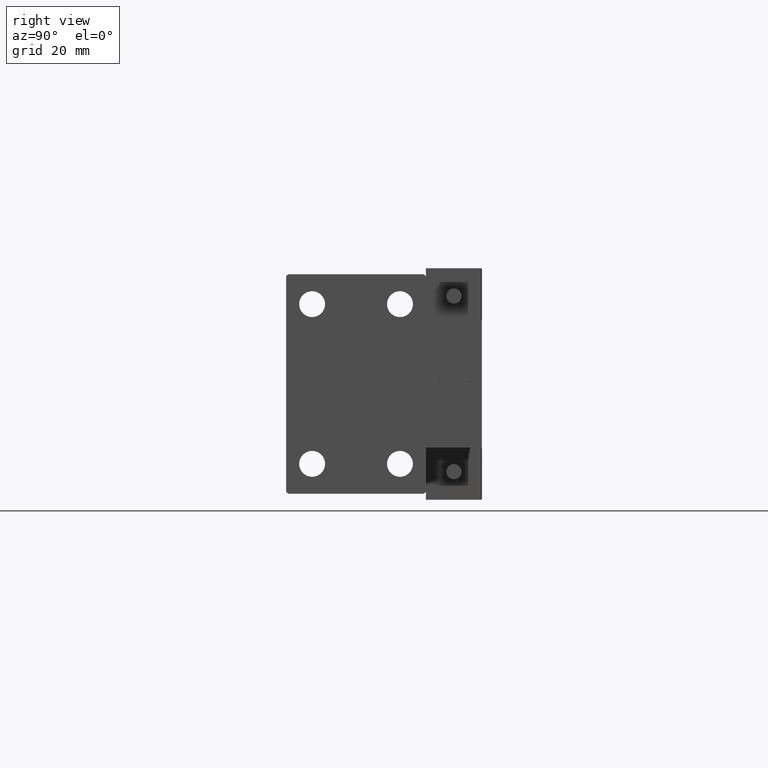
[diagram: clean part render]
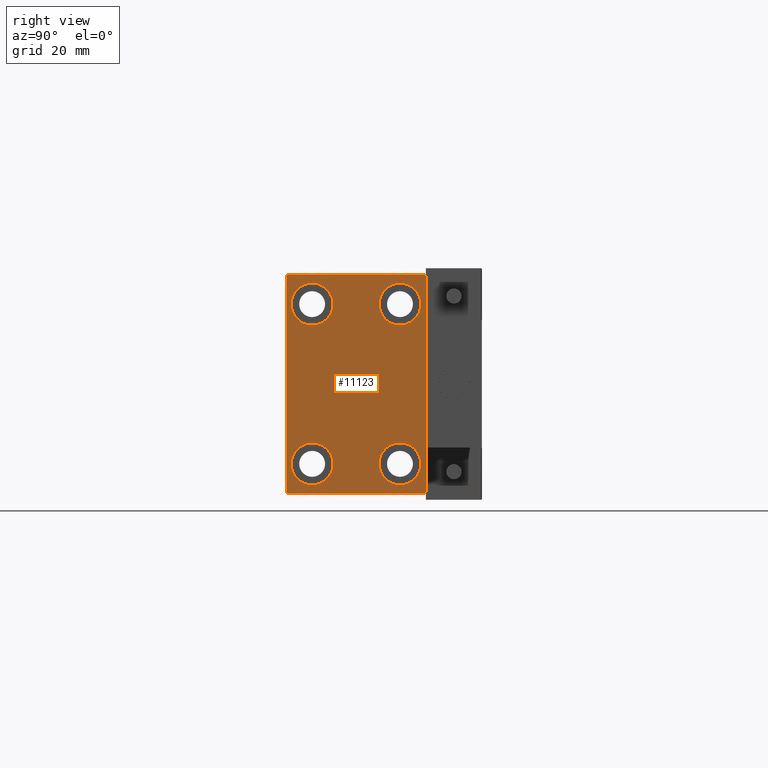
[diagram: same view with one face highlighted and labeled with its STEP entity id]
A machine part, right view. The second image highlights one B-rep face of the part: STEP entity #11123.
In plain terms, the highlighted planar face has unit normal (1, 0, 0).
Its self-contained STEP definition (entity closure, byte-faithful):
#1712 = VECTOR ( 'NONE', #11674, 1000.000000000000000 ) ;
#3314 = EDGE_LOOP ( 'NONE', ( #40503, #49471 ) ) ;
#4213 = CARTESIAN_POINT ( 'NONE',  ( 96.00000000000000000, 11.00000000000000355, -25.25000000000000000 ) ) ;
#4251 = CARTESIAN_POINT ( 'NONE',  ( 96.00000000000000000, 17.50000000000000711, -26.99999999999998934 ) ) ;
#4534 = EDGE_LOOP ( 'NONE', ( #36946, #25582 ) ) ;
#5005 = AXIS2_PLACEMENT_3D ( 'NONE', #47364, #9330, #32392 ) ;
#5074 = VECTOR ( 'NONE', #36398, 1000.000000000000114 ) ;
#5826 = CIRCLE ( 'NONE', #15543, 5.250000000000000888 ) ;
#5888 = DIRECTION ( 'NONE',  ( -1.000000000000000000, -0.000000000000000000, -0.000000000000000000 ) ) ;
#6145 = AXIS2_PLACEMENT_3D ( 'NONE', #30121, #41266, #49142 ) ;
#6338 = CIRCLE ( 'NONE', #38691, 5.250000000000000888 ) ;
#6445 = EDGE_CURVE ( 'NONE', #44806, #10533, #38529, .T. ) ;
#6670 = CARTESIAN_POINT ( 'NONE',  ( 96.00000000000000000, 17.50000000000000000, 27.50000000000000355 ) ) ;
#7096 = EDGE_CURVE ( 'NONE', #27368, #24488, #29750, .T. ) ;
#7101 = AXIS2_PLACEMENT_3D ( 'NONE', #46676, #19057, #23610 ) ;
#7784 = LINE ( 'NONE', #46830, #48483 ) ;
#9062 = ORIENTED_EDGE ( 'NONE', *, *, #27316, .T. ) ;
#9274 = CARTESIAN_POINT ( 'NONE',  ( 96.00000000000000000, -17.00000000000000000, 27.49999999999999645 ) ) ;
#9330 = DIRECTION ( 'NONE',  ( -1.000000000000000000, -0.000000000000000000, -0.000000000000000000 ) ) ;
#9632 = CIRCLE ( 'NONE', #42791, 5.250000000000000888 ) ;
#9876 = LINE ( 'NONE', #44093, #44763 ) ;
#10155 = EDGE_CURVE ( 'NONE', #42164, #32966, #47557, .T. ) ;
#10518 = CARTESIAN_POINT ( 'NONE',  ( 96.00000000000000000, -17.50000000000000000, 26.99999999999999645 ) ) ;
#10533 = VERTEX_POINT ( 'NONE', #39551 ) ;
#11123 = ADVANCED_FACE ( 'NONE', ( #34514, #37807, #45925, #22865, #38314 ), #30710, .T. ) ;
#11262 = CARTESIAN_POINT ( 'NONE',  ( 96.00000000000000000, -17.50000000000000000, -27.00000000000000355 ) ) ;
#11437 = CARTESIAN_POINT ( 'NONE',  ( 96.00000000000000000, -17.50000000000000000, 27.49999999999999645 ) ) ;
#11674 = DIRECTION ( 'NONE',  ( 0.000000000000000000, 0.000000000000000000, -1.000000000000000000 ) ) ;
#12168 = LINE ( 'NONE', #27641, #43718 ) ;
#12574 = EDGE_CURVE ( 'NONE', #10533, #44806, #9632, .T. ) ;
#12909 = CARTESIAN_POINT ( 'NONE',  ( 96.00000000000000000, -11.00000000000000355, -20.00000000000000000 ) ) ;
#12937 = ORIENTED_EDGE ( 'NONE', *, *, #12574, .T. ) ;
#13207 = DIRECTION ( 'NONE',  ( 0.000000000000000000, -0.7071067811865474617, -0.7071067811865474617 ) ) ;
#13379 = CARTESIAN_POINT ( 'NONE',  ( 96.00000000000000000, -11.00000000000000355, 25.25000000000000000 ) ) ;
#13693 = CARTESIAN_POINT ( 'NONE',  ( 96.00000000000000000, -11.00000000000000355, 14.75000000000000000 ) ) ;
#14012 = ORIENTED_EDGE ( 'NONE', *, *, #6445, .T. ) ;
#15543 = AXIS2_PLACEMENT_3D ( 'NONE', #18174, #33624, #38180 ) ;
#15739 = AXIS2_PLACEMENT_3D ( 'NONE', #38029, #18781, #22079 ) ;
#17367 = CIRCLE ( 'NONE', #15739, 5.250000000000000888 ) ;
#17511 = DIRECTION ( 'NONE',  ( 0.000000000000000000, 1.000000000000000000, 0.000000000000000000 ) ) ;
#17644 = CARTESIAN_POINT ( 'NONE',  ( 96.00000000000000000, 22.24999999999999645, -22.24999999999999645 ) ) ;
#18126 = EDGE_LOOP ( 'NONE', ( #23185, #32164, #28645, #9062, #31268, #24193, #37652, #42090 ) ) ;
#18174 = CARTESIAN_POINT ( 'NONE',  ( 96.00000000000000000, -11.00000000000000355, 20.00000000000000000 ) ) ;
#18504 = CARTESIAN_POINT ( 'NONE',  ( 96.00000000000000000, -11.00000000000000355, -25.25000000000000000 ) ) ;
#18781 = DIRECTION ( 'NONE',  ( -1.000000000000000000, -0.000000000000000000, -0.000000000000000000 ) ) ;
#19057 = DIRECTION ( 'NONE',  ( -1.000000000000000000, -0.000000000000000000, -0.000000000000000000 ) ) ;
#19116 = VECTOR ( 'NONE', #22142, 1000.000000000000000 ) ;
#20159 = VERTEX_POINT ( 'NONE', #11262 ) ;
#20332 = EDGE_LOOP ( 'NONE', ( #41956, #35189 ) ) ;
#21413 = CARTESIAN_POINT ( 'NONE',  ( 96.00000000000000000, 11.00000000000000355, -14.75000000000000000 ) ) ;
#22079 = DIRECTION ( 'NONE',  ( 0.000000000000000000, 0.000000000000000000, 1.000000000000000000 ) ) ;
#22142 = DIRECTION ( 'NONE',  ( 0.000000000000000000, -1.000000000000000000, -1.982541115402065110E-16 ) ) ;
#22865 = FACE_BOUND ( 'NONE', #20332, .T. ) ;
#22940 = VERTEX_POINT ( 'NONE', #46396 ) ;
#23185 = ORIENTED_EDGE ( 'NONE', *, *, #7096, .T. ) ;
#23610 = DIRECTION ( 'NONE',  ( 0.000000000000000000, 0.000000000000000000, 1.000000000000000000 ) ) ;
#24193 = ORIENTED_EDGE ( 'NONE', *, *, #43035, .T. ) ;
#24221 = EDGE_CURVE ( 'NONE', #32966, #42164, #41115, .T. ) ;
#24382 = LINE ( 'NONE', #44122, #46812 ) ;
#24461 = CIRCLE ( 'NONE', #5005, 5.250000000000000888 ) ;
#24488 = VERTEX_POINT ( 'NONE', #9274 ) ;
#25162 = EDGE_CURVE ( 'NONE', #24488, #38993, #24382, .T. ) ;
#25219 = VERTEX_POINT ( 'NONE', #18504 ) ;
#25582 = ORIENTED_EDGE ( 'NONE', *, *, #24221, .T. ) ;
#26294 = EDGE_CURVE ( 'NONE', #42663, #25219, #6338, .T. ) ;
#26927 = CARTESIAN_POINT ( 'NONE',  ( 96.00000000000000000, 0.000000000000000000, 0.000000000000000000 ) ) ;
#27316 = EDGE_CURVE ( 'NONE', #20159, #47432, #7784, .T. ) ;
#27368 = VERTEX_POINT ( 'NONE', #38963 ) ;
#27641 = CARTESIAN_POINT ( 'NONE',  ( 96.00000000000000000, 17.50000000000000711, -27.50000000000000355 ) ) ;
#27867 = DIRECTION ( 'NONE',  ( -1.000000000000000000, -0.000000000000000000, -0.000000000000000000 ) ) ;
#28374 = DIRECTION ( 'NONE',  ( -1.000000000000000000, -0.000000000000000000, -0.000000000000000000 ) ) ;
#28645 = ORIENTED_EDGE ( 'NONE', *, *, #37304, .T. ) ;
#29069 = CARTESIAN_POINT ( 'NONE',  ( 96.00000000000000000, -11.00000000000000355, -14.75000000000000000 ) ) ;
#29672 = EDGE_CURVE ( 'NONE', #47432, #31078, #35760, .T. ) ;
#29750 = LINE ( 'NONE', #6670, #19116 ) ;
#30121 = CARTESIAN_POINT ( 'NONE',  ( 96.00000000000000000, 11.00000000000000355, 20.00000000000000000 ) ) ;
#30597 = CARTESIAN_POINT ( 'NONE',  ( 96.00000000000000000, 16.99999999999999289, -27.50000000000000355 ) ) ;
#30710 = PLANE ( 'NONE',  #33033 ) ;
#30964 = DIRECTION ( 'NONE',  ( 1.000000000000000000, 0.000000000000000000, 0.000000000000000000 ) ) ;
#31078 = VERTEX_POINT ( 'NONE', #30597 ) ;
#31268 = ORIENTED_EDGE ( 'NONE', *, *, #29672, .T. ) ;
#31904 = DIRECTION ( 'NONE',  ( 0.000000000000000000, 0.000000000000000000, 1.000000000000000000 ) ) ;
#32164 = ORIENTED_EDGE ( 'NONE', *, *, #25162, .T. ) ;
#32392 = DIRECTION ( 'NONE',  ( 0.000000000000000000, 0.000000000000000000, 1.000000000000000000 ) ) ;
#32643 = VERTEX_POINT ( 'NONE', #4251 ) ;
#32663 = CARTESIAN_POINT ( 'NONE',  ( 96.00000000000000000, 11.00000000000000355, 20.00000000000000000 ) ) ;
#32912 = DIRECTION ( 'NONE',  ( 0.000000000000000000, 0.000000000000000000, 1.000000000000000000 ) ) ;
#32966 = VERTEX_POINT ( 'NONE', #21413 ) ;
#33033 = AXIS2_PLACEMENT_3D ( 'NONE', #26927, #30964, #42357 ) ;
#33188 = DIRECTION ( 'NONE',  ( -0.000000000000000000, -0.7071067811865474617, 0.7071067811865474617 ) ) ;
#33624 = DIRECTION ( 'NONE',  ( -1.000000000000000000, -0.000000000000000000, -0.000000000000000000 ) ) ;
#34514 = FACE_BOUND ( 'NONE', #4534, .T. ) ;
#35189 = ORIENTED_EDGE ( 'NONE', *, *, #26294, .T. ) ;
#35760 = LINE ( 'NONE', #44371, #44377 ) ;
#36226 = DIRECTION ( 'NONE',  ( 0.000000000000000000, -1.261617073437677752E-16, 1.000000000000000000 ) ) ;
#36398 = DIRECTION ( 'NONE',  ( -0.000000000000000000, 0.7071067811865474617, 0.7071067811865474617 ) ) ;
#36946 = ORIENTED_EDGE ( 'NONE', *, *, #10155, .T. ) ;
#37304 = EDGE_CURVE ( 'NONE', #38993, #20159, #41101, .T. ) ;
#37456 = CARTESIAN_POINT ( 'NONE',  ( 96.00000000000000000, -17.00000000000001421, -27.50000000000000355 ) ) ;
#37652 = ORIENTED_EDGE ( 'NONE', *, *, #48510, .T. ) ;
#37767 = EDGE_CURVE ( 'NONE', #25219, #42663, #24461, .T. ) ;
#37807 = FACE_BOUND ( 'NONE', #3314, .T. ) ;
#37877 = VERTEX_POINT ( 'NONE', #13379 ) ;
#38029 = CARTESIAN_POINT ( 'NONE',  ( 96.00000000000000000, -11.00000000000000355, 20.00000000000000000 ) ) ;
#38180 = DIRECTION ( 'NONE',  ( 0.000000000000000000, 0.000000000000000000, 1.000000000000000000 ) ) ;
#38314 = FACE_OUTER_BOUND ( 'NONE', #18126, .T. ) ;
#38529 = CIRCLE ( 'NONE', #6145, 5.250000000000000888 ) ;
#38691 = AXIS2_PLACEMENT_3D ( 'NONE', #12909, #28374, #32912 ) ;
#38963 = CARTESIAN_POINT ( 'NONE',  ( 96.00000000000000000, 17.00000000000001421, 27.50000000000000355 ) ) ;
#38993 = VERTEX_POINT ( 'NONE', #10518 ) ;
#39551 = CARTESIAN_POINT ( 'NONE',  ( 96.00000000000000000, 11.00000000000000355, 25.25000000000000000 ) ) ;
#40503 = ORIENTED_EDGE ( 'NONE', *, *, #42069, .T. ) ;
#40799 = EDGE_CURVE ( 'NONE', #22940, #27368, #9876, .T. ) ;
#41101 = LINE ( 'NONE', #11437, #1712 ) ;
#41115 = CIRCLE ( 'NONE', #7101, 5.250000000000000888 ) ;
#41266 = DIRECTION ( 'NONE',  ( -1.000000000000000000, -0.000000000000000000, -0.000000000000000000 ) ) ;
#41708 = VERTEX_POINT ( 'NONE', #13693 ) ;
#41956 = ORIENTED_EDGE ( 'NONE', *, *, #37767, .T. ) ;
#42069 = EDGE_CURVE ( 'NONE', #41708, #37877, #5826, .T. ) ;
#42090 = ORIENTED_EDGE ( 'NONE', *, *, #40799, .T. ) ;
#42164 = VERTEX_POINT ( 'NONE', #4213 ) ;
#42357 = DIRECTION ( 'NONE',  ( 0.000000000000000000, 0.000000000000000000, -1.000000000000000000 ) ) ;
#42663 = VERTEX_POINT ( 'NONE', #29069 ) ;
#42791 = AXIS2_PLACEMENT_3D ( 'NONE', #32663, #27867, #31904 ) ;
#42827 = CARTESIAN_POINT ( 'NONE',  ( 96.00000000000000000, 11.00000000000000355, 14.75000000000000000 ) ) ;
#43035 = EDGE_CURVE ( 'NONE', #31078, #32643, #48325, .T. ) ;
#43363 = EDGE_LOOP ( 'NONE', ( #14012, #12937 ) ) ;
#43718 = VECTOR ( 'NONE', #36226, 1000.000000000000000 ) ;
#44093 = CARTESIAN_POINT ( 'NONE',  ( 96.00000000000000000, 22.25000000000000711, 22.25000000000000711 ) ) ;
#44122 = CARTESIAN_POINT ( 'NONE',  ( 96.00000000000000000, -22.24999999999999645, 22.24999999999999645 ) ) ;
#44371 = CARTESIAN_POINT ( 'NONE',  ( 96.00000000000000000, -17.50000000000000000, -27.50000000000000355 ) ) ;
#44377 = VECTOR ( 'NONE', #17511, 1000.000000000000000 ) ;
#44631 = EDGE_CURVE ( 'NONE', #37877, #41708, #17367, .T. ) ;
#44763 = VECTOR ( 'NONE', #33188, 1000.000000000000114 ) ;
#44806 = VERTEX_POINT ( 'NONE', #42827 ) ;
#45918 = AXIS2_PLACEMENT_3D ( 'NONE', #47484, #5888, #48740 ) ;
#45925 = FACE_BOUND ( 'NONE', #43363, .T. ) ;
#46396 = CARTESIAN_POINT ( 'NONE',  ( 96.00000000000000000, 17.50000000000000000, 27.00000000000001776 ) ) ;
#46676 = CARTESIAN_POINT ( 'NONE',  ( 96.00000000000000000, 11.00000000000000355, -20.00000000000000000 ) ) ;
#46812 = VECTOR ( 'NONE', #13207, 1000.000000000000114 ) ;
#46830 = CARTESIAN_POINT ( 'NONE',  ( 96.00000000000000000, -22.25000000000024869, -22.24999999999963407 ) ) ;
#47364 = CARTESIAN_POINT ( 'NONE',  ( 96.00000000000000000, -11.00000000000000355, -20.00000000000000000 ) ) ;
#47432 = VERTEX_POINT ( 'NONE', #37456 ) ;
#47484 = CARTESIAN_POINT ( 'NONE',  ( 96.00000000000000000, 11.00000000000000355, -20.00000000000000000 ) ) ;
#47557 = CIRCLE ( 'NONE', #45918, 5.250000000000000888 ) ;
#48325 = LINE ( 'NONE', #17644, #5074 ) ;
#48483 = VECTOR ( 'NONE', #50141, 1000.000000000000000 ) ;
#48510 = EDGE_CURVE ( 'NONE', #32643, #22940, #12168, .T. ) ;
#48740 = DIRECTION ( 'NONE',  ( 0.000000000000000000, 0.000000000000000000, 1.000000000000000000 ) ) ;
#49142 = DIRECTION ( 'NONE',  ( 0.000000000000000000, 0.000000000000000000, 1.000000000000000000 ) ) ;
#49471 = ORIENTED_EDGE ( 'NONE', *, *, #44631, .T. ) ;
#50141 = DIRECTION ( 'NONE',  ( -0.000000000000000000, 0.7071067811865378028, -0.7071067811865573427 ) ) ;